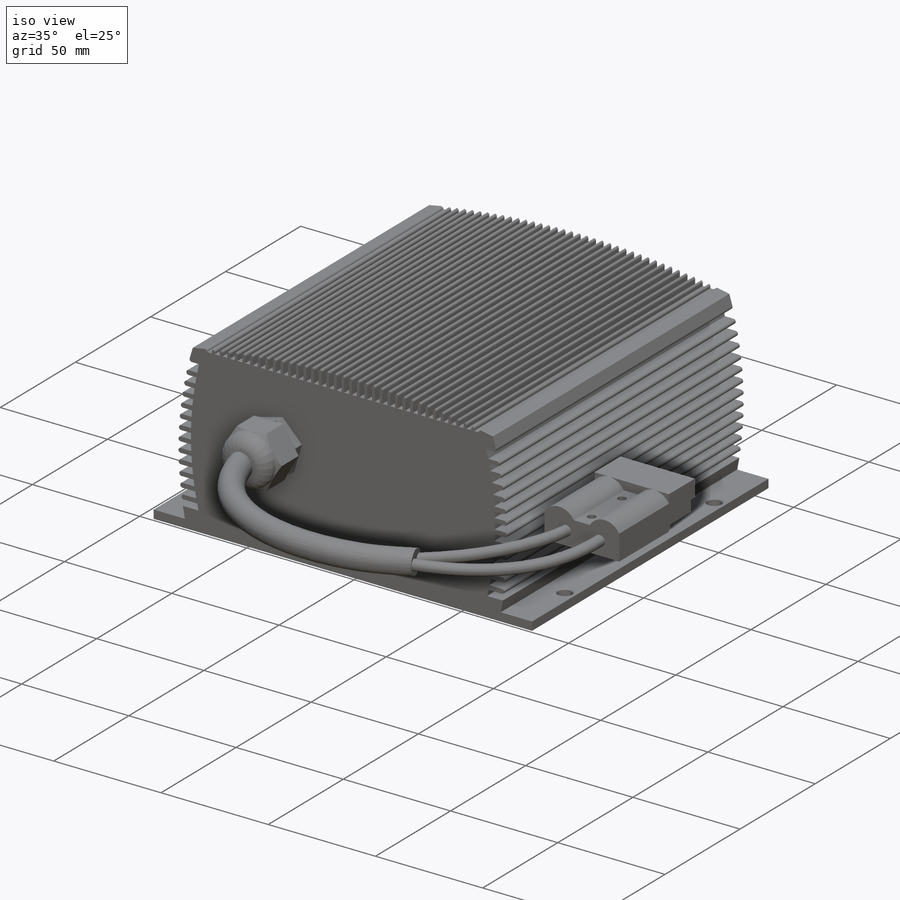
[diagram: iso view]
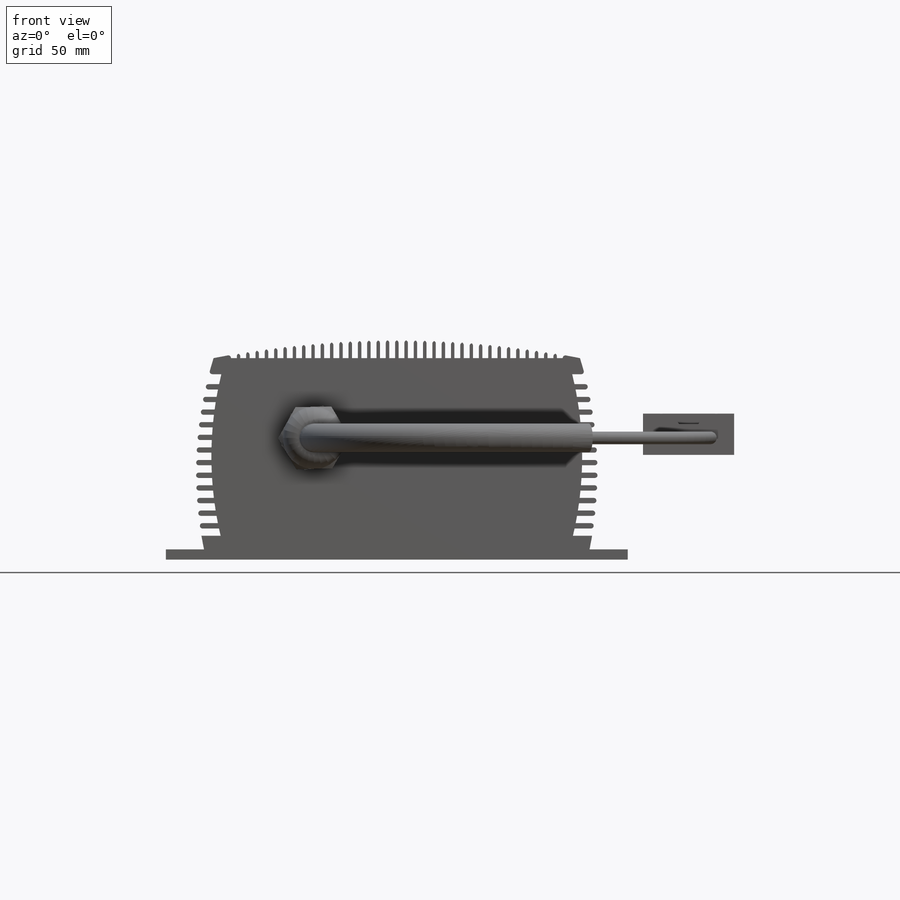
[diagram: front view]
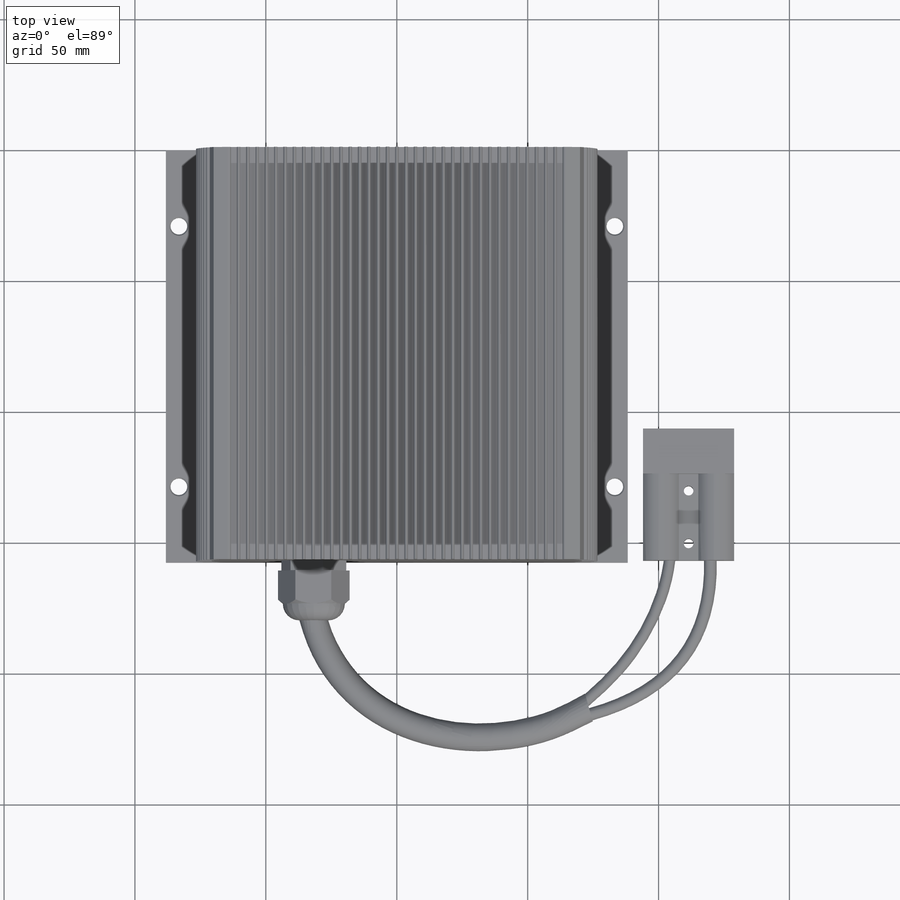
[diagram: top view]
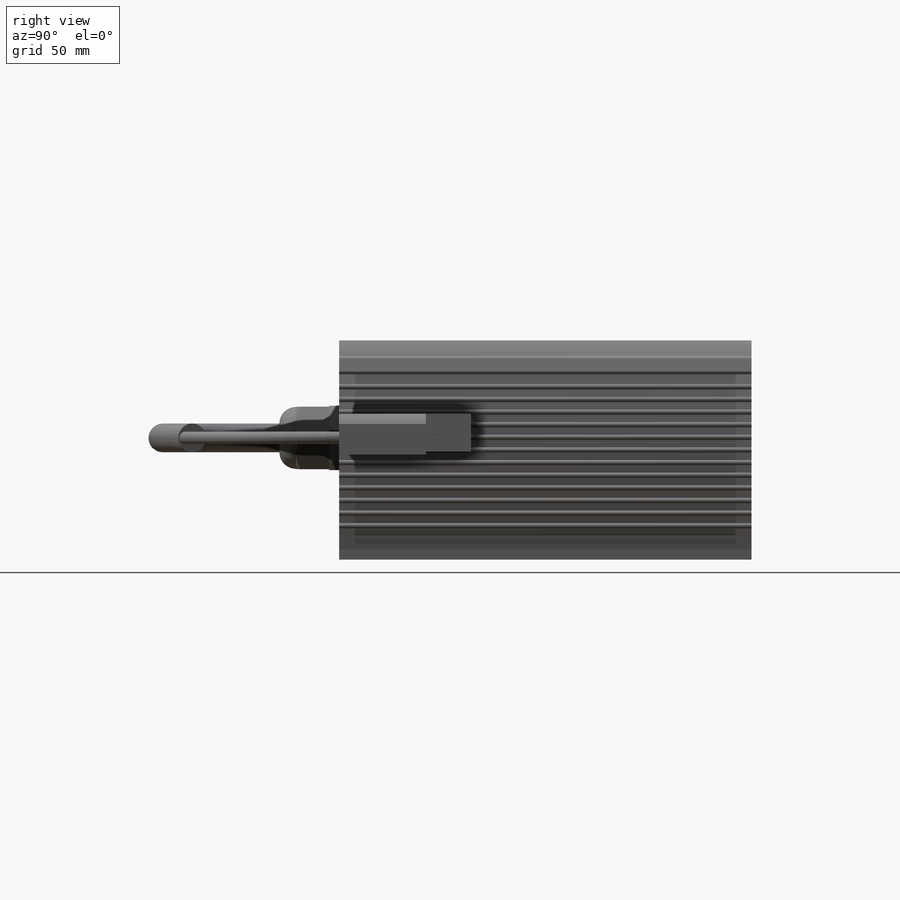
[diagram: right view]
SOLIDWORKS PART (.sldprt)
format: sldprt  version: not decoded by parser v0  size: 1,529,856 bytes
history: native  units: mm
features: sketch x22, cut_extrude x9, extrude x7, fillet x3, sweep x3, material x1, chamfer x1, plane x1 (+16 scaffold rows collapsed)
feature tree (63):
  scaffold x16  (default folders/planes/origin — collapsed)
  material  "Material <not specified>"
  sketch  "Sketch1"  dims[c1.D4=~230.047558mm c1.D5=203.2mm c2.D4=203.2mm c2.D5=~243.948361mm c2.D1=173.9646mm c2.D2=3.9116mm c2.D3=77.0382mm c3.D4=6.9596mm c3.D3=76.5302mm c4.D4=145.923mm c4.D5=14.0208mm c4.D3=14.5796mm c5.D4=14.5796mm c5.D5=139.954mm c5.D1=147.2692mm c5.D6=153.3398mm c5.D7=76.9874mm]
  extrude  "Boss-Extrude1"  Depth=157.48mm
  sketch  "Sketch2"  dims[D1=6.604mm D2=2.2352mm D3=36.0]
  cut_extrude  "Cut-Extrude1"  [1 undecoded]
  sketch  "Sketch3"  dims[c1.D1=72.644mm c1.D2=4.2672mm c1.D3=1.27mm c2.D2=4.2672mm c2.D3=70.8025mm c2.D4=70.8025mm c2.D5=6.1468mm c2.D6=3.81mm c2.D7=2.032mm c2.D8=2.794mm c2.D9=12.0]
  cut_extrude  "Cut-Extrude2"  [1 undecoded]
  fillet  "Fillet3"  Radius=1.016mm
  sketch  "Sketch4"  dims[D1=6.35mm D2=4.9784mm D3=28.9814mm]
  cut_extrude  "Cut-Extrude3"  Depth=157.48mm
  chamfer  "Chamfer1"  Distance=0.508mm Angle=45deg
  sketch  "Sketch5"  dims[D3=9.525mm D1=63.246mm D2=63.246mm]
  cut_extrude  "Cut-Extrude4"  Depth=4.064mm
  sketch  "Sketch6"
  extrude  "Boss-Extrude2"  Depth=2.54mm
  fillet  "Fillet4"  Radius=2.54mm
  sketch  "Sketch7"
  cut_extrude  "Cut-Extrude5"  Depth=0.508mm
  sketch  "Sketch8"  dims[c1.D1=26.67mm c1.D2=26.67mm c1.D3=26.67mm c2.D2=46.5074mm c2.D3=44.3738mm]
  cut_extrude  "Cut-Extrude6"  Depth=0.254mm
  sketch  "Sketch9"  dims[D1=22.1488mm]
  extrude  "Boss-Extrude3"  Depth=4.064mm
  sketch  "Sketch10"  dims[D1=23.6982mm]
  extrude  "Boss-Extrude4"  Depth=12.7mm
  sketch  "Sketch11"
  cut_extrude  "Cut-Extrude7"  Depth=5.08mm
  extrude  "Boss-Extrude5"  [1 undecoded]
  sketch  "Sketch11<2>"  dims[D1=6.35mm]
  fillet  "Fillet5"  Radius=6.35mm
  plane  "Plane2"
  sketch  "Sketch13"
  sketch  "Sketch14"
  sweep  "Sweep1"
  sketch  "Sketch15"  dims[D1=3.81mm]
  sketch  "Sketch16"  dims[D1=4.826mm]
  sweep  "Sweep3"
  sketch  "Sketch17"  dims[D1=4.826mm]
  sketch  "Sketch18"
  sweep  "Sweep6"
  sketch  "Sketch19"  dims[D1=34.8234mm D2=11.7856mm D3=15.748mm D4=7.4422mm]
  extrude  "Boss-Extrude6"  Depth=33.0962mm
  sketch  "Sketch20"  dims[D1=3.683mm D2=3.683mm D3=6.4643mm D4=6.477mm]
  cut_extrude  "Cut-Extrude8"  [1 undecoded]
  sketch  "Sketch22"  dims[D1=14.478mm]
  extrude  "Boss-Extrude7"  Depth=17.2212mm
  sketch  "Sketch23"  dims[c1.D1=31.369mm c1.D2=12.1666mm c1.D3=12.1666mm c1.D5=12.7mm c1.D6=12.7mm c1.D7=7.9248mm c2.D6=9.1948mm c2.D7=1.4986mm c2.D4=1.143mm]
  cut_extrude  "Cut-Extrude9"  Depth=16.51mm
decode coverage: 32 of 45 modeling features carry decoded parameters
note: ~ marks probable driven/reference dimensions
note: 4 parameter values undecoded
summary: no parameter record found for 4 features
note: suppression state not decoded; provenance and decode notes live in map.json
